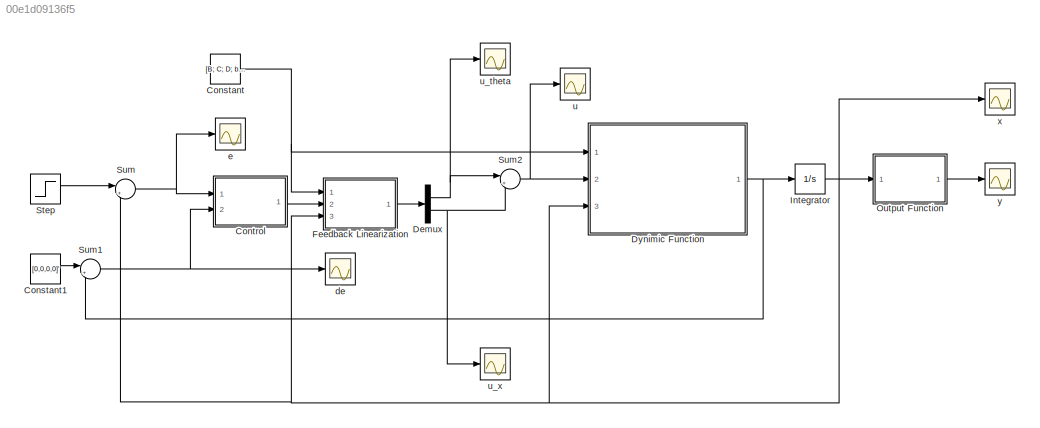
MODEL slx_00e1d09136f5
KIND model
CONFIG AbsTol = auto
CONFIG EnableMultiTasking = off
CONFIG FixedStep = auto
CONFIG MaxStep = auto
CONFIG MinStep = auto
CONFIG RelTol = 1e-3
CONFIG SampleTimeConstraint = Unconstrained
CONFIG Solver = VariableStepAuto
CONFIG SolverName = VariableStepAuto
CONFIG StartTime = 0.0
CONFIG StopTime = 25
BLOCK [Constant] Constant
  Value = [B; C; D; b1; b2; l; gravity]
BLOCK [Constant] Constant1
  Value = [0,0,0,0]'
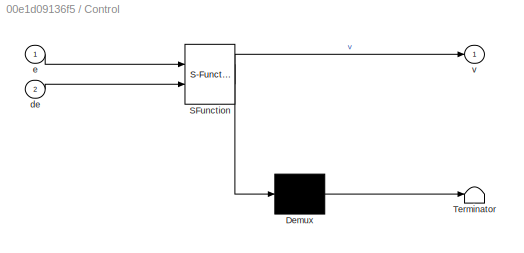
BLOCK [SubSystem] Control
  ErrorFcn = Stateflow.Translate.translate
  PermitHierarchicalResolution = ExplicitOnly
  Ports = [2, 1]
  RequestExecContextInheritance = off
  SFBlockType = MATLAB Function
  TreatAsAtomicUnit = on
BLOCK [Demux] Control/ Demux 
  Outputs = 1
  Ports = [1, 1]
BLOCK [S-Function] Control/ SFunction 
  EnableBusSupport = on
  FunctionName = sf_sfun
  PortCounts = [2 2]
  Ports = [2, 2]
  SFcnIsStateOwnerBlock = off
  SFunctionDeploymentMode = off
  Tag = Stateflow S-Function 4
BLOCK [Terminator] Control/ Terminator 
BLOCK [Inport] Control/de
  IconDisplay = Port number
  Port = 2
BLOCK [Inport] Control/e
  IconDisplay = Port number
BLOCK [Outport] Control/v
  IconDisplay = Port number
BLOCK [Demux] Demux
  DisplayOption = bar
  Outputs = 2
  Ports = [1, 2]
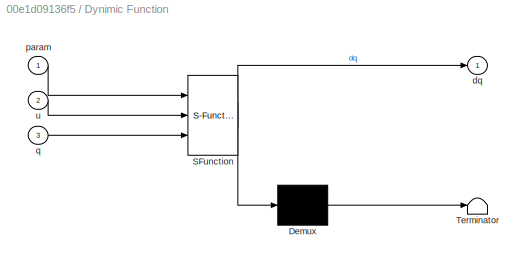
BLOCK [SubSystem] Dynimic Function
  ErrorFcn = Stateflow.Translate.translate
  PermitHierarchicalResolution = ExplicitOnly
  Ports = [3, 1]
  RequestExecContextInheritance = off
  SFBlockType = MATLAB Function
  TreatAsAtomicUnit = on
BLOCK [Demux] Dynimic Function/ Demux 
  Outputs = 1
  Ports = [1, 1]
BLOCK [S-Function] Dynimic Function/ SFunction 
  EnableBusSupport = on
  FunctionName = sf_sfun
  PortCounts = [3 2]
  Ports = [3, 2]
  SFcnIsStateOwnerBlock = off
  SFunctionDeploymentMode = off
  Tag = Stateflow S-Function 2
BLOCK [Terminator] Dynimic Function/ Terminator 
BLOCK [Outport] Dynimic Function/dq
  IconDisplay = Port number
BLOCK [Inport] Dynimic Function/param
  IconDisplay = Port number
BLOCK [Inport] Dynimic Function/q
  IconDisplay = Port number
  Port = 3
BLOCK [Inport] Dynimic Function/u
  IconDisplay = Port number
  Port = 2
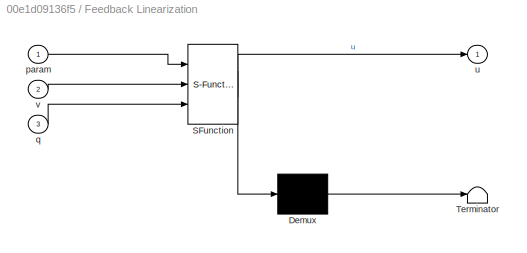
BLOCK [SubSystem] Feedback Linearization
  ErrorFcn = Stateflow.Translate.translate
  PermitHierarchicalResolution = ExplicitOnly
  Ports = [3, 1]
  RequestExecContextInheritance = off
  SFBlockType = MATLAB Function
  TreatAsAtomicUnit = on
BLOCK [Demux] Feedback Linearization/ Demux 
  Outputs = 1
  Ports = [1, 1]
BLOCK [S-Function] Feedback Linearization/ SFunction 
  EnableBusSupport = on
  FunctionName = sf_sfun
  PortCounts = [3 2]
  Ports = [3, 2]
  SFcnIsStateOwnerBlock = off
  SFunctionDeploymentMode = off
  Tag = Stateflow S-Function 1
BLOCK [Terminator] Feedback Linearization/ Terminator 
BLOCK [Inport] Feedback Linearization/param
  IconDisplay = Port number
BLOCK [Inport] Feedback Linearization/q
  IconDisplay = Port number
  Port = 3
BLOCK [Outport] Feedback Linearization/u
  IconDisplay = Port number
BLOCK [Inport] Feedback Linearization/v
  IconDisplay = Port number
  Port = 2
BLOCK [Integrator] Integrator
  InitialCondition = q0
  Ports = [1, 1]
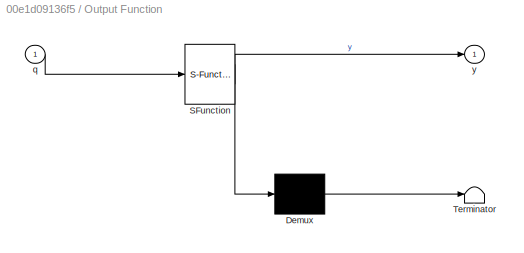
BLOCK [SubSystem] Output Function
  ErrorFcn = Stateflow.Translate.translate
  PermitHierarchicalResolution = ExplicitOnly
  Ports = [1, 1]
  RequestExecContextInheritance = off
  SFBlockType = MATLAB Function
  TreatAsAtomicUnit = on
BLOCK [Demux] Output Function/ Demux 
  Outputs = 1
  Ports = [1, 1]
BLOCK [S-Function] Output Function/ SFunction 
  EnableBusSupport = on
  FunctionName = sf_sfun
  PortCounts = [1 2]
  Ports = [1, 2]
  SFcnIsStateOwnerBlock = off
  SFunctionDeploymentMode = off
  Tag = Stateflow S-Function 3
BLOCK [Terminator] Output Function/ Terminator 
BLOCK [Inport] Output Function/q
  IconDisplay = Port number
BLOCK [Outport] Output Function/y
  IconDisplay = Port number
BLOCK [Step] Step
  After = [0,0,3,0]'
  SampleTime = 0
BLOCK [Sum] Sum
  IconShape = round
  InputSameDT = off
  Inputs = |+-
  OutDataTypeStr = Inherit: Inherit via internal rule
  Ports = [2, 1]
  SaturateOnIntegerOverflow = off
BLOCK [Sum] Sum1
  IconShape = round
  InputSameDT = off
  Inputs = |+-
  OutDataTypeStr = Inherit: Inherit via internal rule
  Ports = [2, 1]
  SaturateOnIntegerOverflow = off
BLOCK [Sum] Sum2
  IconShape = round
  InputSameDT = off
  Inputs = |++
  OutDataTypeStr = Inherit: Inherit via internal rule
  Ports = [2, 1]
  SaturateOnIntegerOverflow = off
BLOCK [Scope] de
  Floating = off
  NumInputPorts = 1
  Ports = [1]
  ScopeSpecificationString = Simulink.scopes.TimeScopeBlockCfg('CurrentConfiguration', extmgr.ConfigurationSet(extmgr.Configuration('Core','General UI',true),extmgr.Configuration('Core','Source UI',true),extmgr.Configuration('Sources','WiredSimulink',true,'DataLoggingVariableName','ScopeData5'),extmgr.Configuration('Visuals','Time Domain',true,'SerializedDisplays',{struct('MinYLimReal','-114219.8649','MaxYLimReal','12753.8585...<+1519ch>
BLOCK [Scope] e
  Floating = off
  NumInputPorts = 1
  Ports = [1]
  ScopeSpecificationString = Simulink.scopes.TimeScopeBlockCfg('CurrentConfiguration', extmgr.ConfigurationSet(extmgr.Configuration('Core','General UI',true),extmgr.Configuration('Core','Source UI',true),extmgr.Configuration('Sources','WiredSimulink',true,'DataLoggingVariableName','ScopeData4'),extmgr.Configuration('Visuals','Time Domain',true,'SerializedDisplays',{struct('MinYLimReal','-263.59934','MaxYLimReal','183.83145','...<+1522ch>
BLOCK [Scope] u
  Floating = off
  NumInputPorts = 1
  Ports = [1]
  ScopeSpecificationString = Simulink.scopes.TimeScopeBlockCfg('CurrentConfiguration', extmgr.ConfigurationSet(extmgr.Configuration('Core','General UI',true),extmgr.Configuration('Core','Source UI',true),extmgr.Configuration('Sources','WiredSimulink',true,'DataLoggingVariableName','ScopeData1'),extmgr.Configuration('Visuals','Time Domain',true,'SerializedDisplays',{struct('MinYLimReal','-0.0007','MaxYLimReal','0.00175','YLabe...<+1434ch>
BLOCK [Scope] u_theta
  Floating = off
  NumInputPorts = 1
  Ports = [1]
  ScopeSpecificationString = Simulink.scopes.TimeScopeBlockCfg('CurrentConfiguration', extmgr.ConfigurationSet(extmgr.Configuration('Core','General UI',true),extmgr.Configuration('Core','Source UI',true),extmgr.Configuration('Sources','WiredSimulink',true,'DataLoggingVariableName','ScopeData1'),extmgr.Configuration('Visuals','Time Domain',true,'SerializedDisplays',{struct('MinYLimReal','-2965038678657452.5','MaxYLimReal','277...<+1522ch>
BLOCK [Scope] u_x
  Floating = off
  NumInputPorts = 1
  Ports = [1]
  ScopeSpecificationString = Simulink.scopes.TimeScopeBlockCfg('CurrentConfiguration', extmgr.ConfigurationSet(extmgr.Configuration('Core','General UI',true),extmgr.Configuration('Core','Source UI',true),extmgr.Configuration('Sources','WiredSimulink',true,'DataLoggingVariableName','ScopeData2'),extmgr.Configuration('Visuals','Time Domain',true,'SerializedDisplays',{struct('MinYLimReal','-96.9422','MaxYLimReal','286.0441','YLa...<+1421ch>
BLOCK [Scope] x
  Floating = off
  NumInputPorts = 1
  Ports = [1]
  ScopeSpecificationString = Simulink.scopes.TimeScopeBlockCfg('CurrentConfiguration', extmgr.ConfigurationSet(extmgr.Configuration('Core','General UI',true),extmgr.Configuration('Core','Source UI',true),extmgr.Configuration('Sources','WiredSimulink',true,'DataLoggingVariableName','ScopeData3'),extmgr.Configuration('Visuals','Time Domain',true,'SerializedDisplays',{struct('MinYLimReal','-69.6583','MaxYLimReal','176.80942','YL...<+1544ch>
BLOCK [Scope] y
  Floating = off
  NumInputPorts = 1
  Ports = [1]
  ScopeSpecificationString = Simulink.scopes.TimeScopeBlockCfg('CurrentConfiguration', extmgr.ConfigurationSet(extmgr.Configuration('Core','General UI',true),extmgr.Configuration('Core','Source UI',true),extmgr.Configuration('Sources','WiredSimulink',true),extmgr.Configuration('Visuals','Time Domain',true,'SerializedDisplays',{struct('MinYLimReal','-1.3058','MaxYLimReal','3.46409','YLabelReal','','MinYLimMag','0.00000','MaxYL...<+1426ch>
LINE Constant1:1 -> Sum1:1
NET Constant:1 -> Dynimic Function:1, Feedback Linearization:1
LINE Control:1 -> Feedback Linearization:2
NET Demux:1 -> Sum2:1, u_theta:1
NET Demux:2 -> Sum2:2, u_x:1
NET Dynimic Function:1 -> Integrator:1, Sum1:2
LINE Feedback Linearization:1 -> Demux:1
NET Integrator:1 -> Dynimic Function:3, Feedback Linearization:3, Output Function:1, Sum:2, x:1
LINE Output Function:1 -> y:1
LINE Step:1 -> Sum:1
NET Sum1:1 -> Control:2, de:1
NET Sum2:1 -> Dynimic Function:2, u:1
NET Sum:1 -> Control:1, e:1
note: NET lines group one-source signal fan-out (src -> all destinations, sorted); 1:1 wires keep LINE
CHART Feedback Linearization states=1 transitions=1
  STATE_LABEL 'eML_blk_kernel()'
  STATE_LABEL 'SCRIPT:\nfunction u = fcn(param, v, q)\n\nu = zeros(2,1);\n\nB = param(1);\nC = param(2);\nD = param(3);\nb1 = param(4);\nb2 = param(5);\nl = param(6);\ngravity = param(7);\n\nu(1) = (v(1) - Lf2h1_fun(B,C,D,b1,b2,gravity,l,q)) / LgLfh1_fun(B,C,D,l,q);\nu(2) = (v(3) - Lf2h2_fun(B,C,b2,gravity,l,q)) / LgLfh2_fun(B,C,D,l,q);\n\nend'
CHART Dynimic Function states=1 transitions=1
  STATE_LABEL 'eML_blk_kernel()'
  STATE_LABEL 'SCRIPT:\nfunction dq = fcn(param, u, q)\n\nB = param(1);\nC = param(2);\nD = param(3);\nb1 = param(4);\nb2 = param(5);\nl = param(6);\ngravity = param(7);\n\ndq = f_fun(B,C,D,b1,b2,gravity,l,q) + g_fun(B,C,D,l,q)*u;\n\nend'
CHART Output Function states=1 transitions=1
  STATE_LABEL 'eML_blk_kernel()'
  STATE_LABEL 'SCRIPT:\nfunction y = fcn(q)\n\ny = h_fun(q);\n\nend\n'
CHART Control states=1 transitions=1
  STATE_LABEL 'eML_blk_kernel()'
  STATE_LABEL 'SCRIPT:\nfunction v = fcn(e, de)\n\nkp = 10;\nkd = 5;\n\nv = kp * e + kd * de;\n\nend\n'
